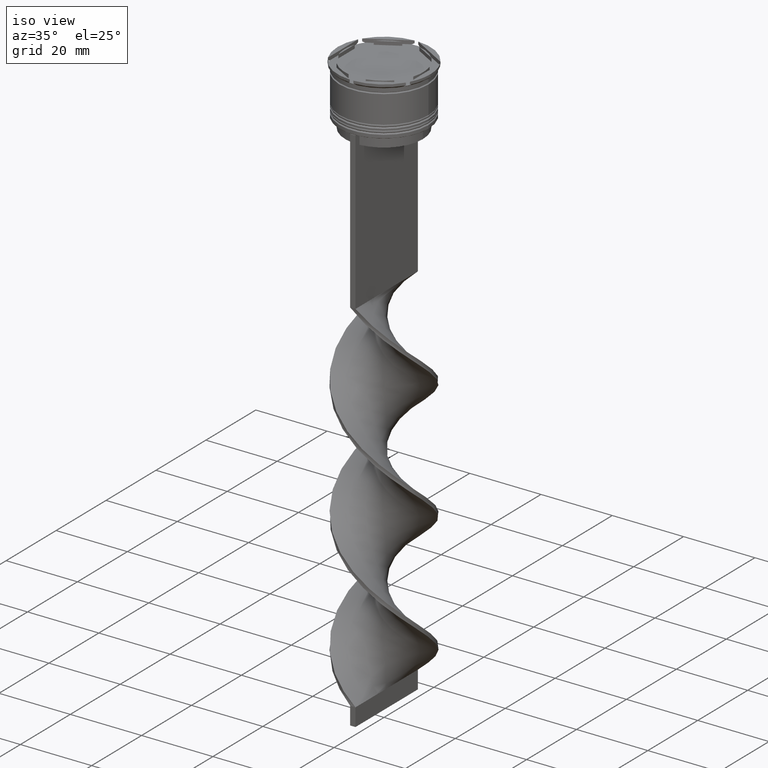
[diagram: clean part render]
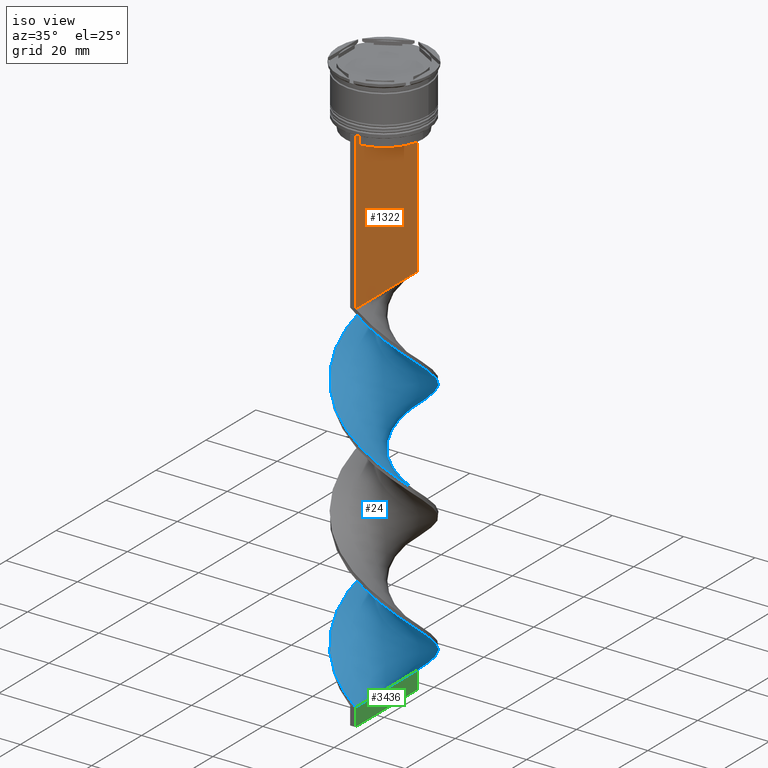
[diagram: same view with three faces highlighted in distinct colors, each labeled with its STEP entity id]
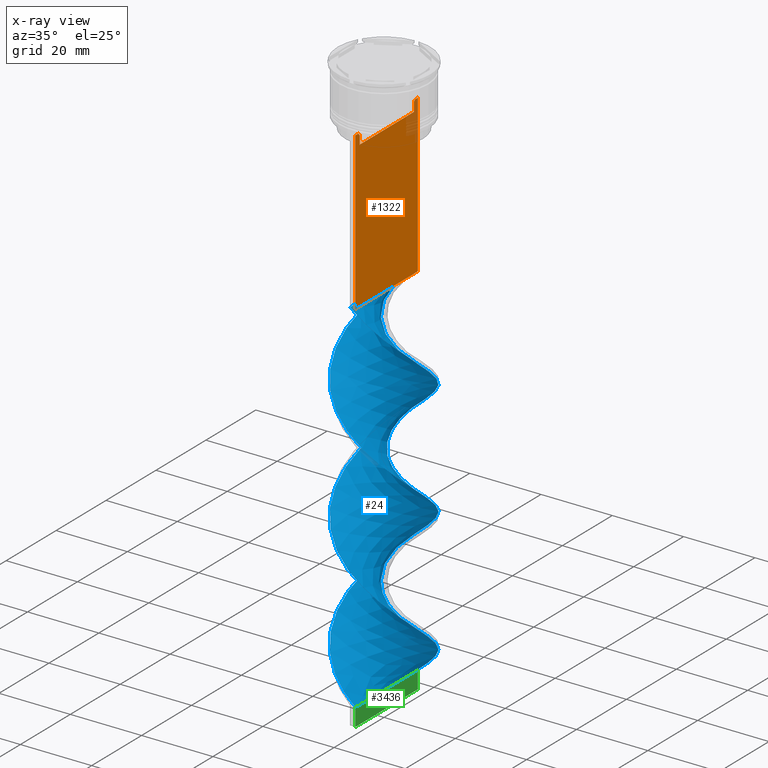
[diagram: x-ray of the same camera — body ghosted, the three highlighted faces saturated]
A machine part, iso view with three faces highlighted in distinct colors.
The next image is the same camera in x-ray (body ghosted, the three faces saturated) — at least one of them is partly hidden behind the body in this view.
Their STEP definitions:

[orange] entity #1322 — the highlighted planar face has unit normal (-1, 0, 0).
#15 = LINE ( 'NONE', #3839, #1508 ) ;
#125 = EDGE_CURVE ( 'NONE', #972, #663, #15, .T. ) ;
#207 = DIRECTION ( 'NONE',  ( -0.000000000000000000, -0.000000000000000000, 1.000000000000000000 ) ) ;
#231 = EDGE_CURVE ( 'NONE', #1227, #4077, #1096, .T. ) ;
#283 = CARTESIAN_POINT ( 'NONE',  ( 0.7500000000000002220, 12.50000000000000000, -14.00000000000000178 ) ) ;
#342 = CARTESIAN_POINT ( 'NONE',  ( 0.7500000000000002220, -11.37530219378809093, -14.00000000000000178 ) ) ;
#452 = CARTESIAN_POINT ( 'NONE',  ( 0.7500000000000002220, -12.50000000000000000, -14.00000000000000178 ) ) ;
#553 = CARTESIAN_POINT ( 'NONE',  ( 0.7500000000000002220, 10.87416663473574197, 0.000000000000000000 ) ) ;
#572 = CARTESIAN_POINT ( 'NONE',  ( 0.7500000000000002220, 12.37729776647553059, -14.00000000000000178 ) ) ;
#609 = CARTESIAN_POINT ( 'NONE',  ( 0.7500000000000002220, -12.50000000000000000, 11.04495957273638673 ) ) ;
#614 = VERTEX_POINT ( 'NONE', #1421 ) ;
#621 = ORIENTED_EDGE ( 'NONE', *, *, #3981, .T. ) ;
#625 = CARTESIAN_POINT ( 'NONE',  ( 0.7500000000000002220, 12.50000000000000000, 11.04495957273638673 ) ) ;
#663 = VERTEX_POINT ( 'NONE', #3974 ) ;
#665 = CARTESIAN_POINT ( 'NONE',  ( 0.7500000000000002220, 11.37530219378809093, -14.00000000000000178 ) ) ;
#701 = CARTESIAN_POINT ( 'NONE',  ( 0.7500000000000002220, -12.37729776647553059, -14.00000000000000178 ) ) ;
#708 = EDGE_CURVE ( 'NONE', #4077, #972, #3425, .T. ) ;
#729 = VERTEX_POINT ( 'NONE', #3746 ) ;
#826 = CARTESIAN_POINT ( 'NONE',  ( 0.7500000000000002220, -10.87416663473574197, -14.50000000000000000 ) ) ;
#854 = VERTEX_POINT ( 'NONE', #1059 ) ;
#898 = DIRECTION ( 'NONE',  ( 0.000000000000000000, -1.000000000000000000, 0.000000000000000000 ) ) ;
#899 = ORIENTED_EDGE ( 'NONE', *, *, #3409, .F. ) ;
#938 = CARTESIAN_POINT ( 'NONE',  ( 0.7500000000000002220, -10.87416663473574019, -17.00000000000000000 ) ) ;
#972 = VERTEX_POINT ( 'NONE', #701 ) ;
#1004 = DIRECTION ( 'NONE',  ( 0.000000000000000000, 1.000000000000000000, 0.000000000000000000 ) ) ;
#1028 = DIRECTION ( 'NONE',  ( 0.000000000000000000, -1.000000000000000000, 0.000000000000000000 ) ) ;
#1059 = CARTESIAN_POINT ( 'NONE',  ( 0.7500000000000002220, 10.87416663473574197, -14.50000000000000000 ) ) ;
#1096 = B_SPLINE_CURVE_WITH_KNOTS ( 'NONE', 3,
 ( #826, #2091, #1206, #1185 ),
 .UNSPECIFIED., .F., .F.,
 ( 4, 4 ),
 ( 0.05009718908159448147, 0.05081156920313959630 ),
 .UNSPECIFIED. ) ;
#1139 = EDGE_CURVE ( 'NONE', #1413, #3848, #4011, .T. ) ;
#1185 = CARTESIAN_POINT ( 'NONE',  ( 0.7500000000000002220, -11.37530219378809093, -14.00000000000000178 ) ) ;
#1206 = CARTESIAN_POINT ( 'NONE',  ( 0.7500000000000002220, -11.20826532207830439, -14.16667499063191826 ) ) ;
#1227 = VERTEX_POINT ( 'NONE', #2421 ) ;
#1240 = DIRECTION ( 'NONE',  ( 0.000000000000000000, 0.000000000000000000, 1.000000000000000000 ) ) ;
#1248 = EDGE_CURVE ( 'NONE', #2902, #1227, #2358, .T. ) ;
#1255 = VECTOR ( 'NONE', #1004, 1000.000000000000000 ) ;
#1322 = ADVANCED_FACE ( 'NONE', ( #3452 ), #2443, .F. ) ;
#1330 = VERTEX_POINT ( 'NONE', #2804 ) ;
#1331 = VECTOR ( 'NONE', #1028, 1000.000000000000000 ) ;
#1393 = ORIENTED_EDGE ( 'NONE', *, *, #1139, .T. ) ;
#1413 = VERTEX_POINT ( 'NONE', #283 ) ;
#1421 = CARTESIAN_POINT ( 'NONE',  ( 0.7500000000000002220, 12.50000000000000000, -58.00000000000000000 ) ) ;
#1458 = EDGE_CURVE ( 'NONE', #3135, #854, #1737, .T. ) ;
#1508 = VECTOR ( 'NONE', #2550, 1000.000000000000000 ) ;
#1602 = VECTOR ( 'NONE', #4080, 1000.000000000000000 ) ;
#1723 = VECTOR ( 'NONE', #2724, 1000.000000000000000 ) ;
#1737 = B_SPLINE_CURVE_WITH_KNOTS ( 'NONE', 3,
 ( #2458, #3706, #4111, #2819 ),
 .UNSPECIFIED., .F., .F.,
 ( 4, 4 ),
 ( 0.01936090553552769281, 0.02006881572333104116 ),
 .UNSPECIFIED. ) ;
#1749 = DIRECTION ( 'NONE',  ( 0.000000000000000000, -1.000000000000000000, 0.000000000000000000 ) ) ;
#1822 = DIRECTION ( 'NONE',  ( 0.000000000000000000, 0.000000000000000000, -1.000000000000000000 ) ) ;
#1833 = CARTESIAN_POINT ( 'NONE',  ( 0.7500000000000002220, -12.50000000000000000, 11.04495957273638673 ) ) ;
#1889 = ORIENTED_EDGE ( 'NONE', *, *, #2745, .T. ) ;
#1923 = VECTOR ( 'NONE', #207, 1000.000000000000000 ) ;
#2087 = ORIENTED_EDGE ( 'NONE', *, *, #231, .T. ) ;
#2091 = CARTESIAN_POINT ( 'NONE',  ( 0.7500000000000002220, -11.04122051801870441, -14.33334204001847567 ) ) ;
#2119 = LINE ( 'NONE', #609, #3601 ) ;
#2198 = ORIENTED_EDGE ( 'NONE', *, *, #2283, .T. ) ;
#2283 = EDGE_CURVE ( 'NONE', #854, #1330, #4094, .T. ) ;
#2323 = AXIS2_PLACEMENT_3D ( 'NONE', #1833, #3114, #1240 ) ;
#2350 = ORIENTED_EDGE ( 'NONE', *, *, #125, .T. ) ;
#2358 = LINE ( 'NONE', #3632, #1923 ) ;
#2421 = CARTESIAN_POINT ( 'NONE',  ( 0.7500000000000002220, -10.87416663473574197, -14.50000000000000000 ) ) ;
#2443 = PLANE ( 'NONE',  #2323 ) ;
#2451 = VECTOR ( 'NONE', #898, 1000.000000000000000 ) ;
#2458 = CARTESIAN_POINT ( 'NONE',  ( 0.7500000000000002220, 11.37530219378809093, -14.00000000000000178 ) ) ;
#2511 = EDGE_CURVE ( 'NONE', #729, #614, #3230, .T. ) ;
#2550 = DIRECTION ( 'NONE',  ( 0.000000000000000000, -1.000000000000000000, 0.000000000000000000 ) ) ;
#2660 = ORIENTED_EDGE ( 'NONE', *, *, #2511, .T. ) ;
#2724 = DIRECTION ( 'NONE',  ( 0.000000000000000000, -1.000000000000000000, 0.000000000000000000 ) ) ;
#2745 = EDGE_CURVE ( 'NONE', #3848, #3135, #3055, .T. ) ;
#2804 = CARTESIAN_POINT ( 'NONE',  ( 0.7500000000000002220, 10.87416663473574019, -17.00000000000000000 ) ) ;
#2819 = CARTESIAN_POINT ( 'NONE',  ( 0.7500000000000002220, 10.87416663473574197, -14.50000000000000000 ) ) ;
#2900 = VECTOR ( 'NONE', #3730, 1000.000000000000000 ) ;
#2902 = VERTEX_POINT ( 'NONE', #938 ) ;
#2942 = EDGE_LOOP ( 'NONE', ( #1889, #3005, #2198, #3909, #3811, #2087, #3963, #2350, #621, #2660, #899, #1393 ) ) ;
#2945 = LINE ( 'NONE', #3534, #1331 ) ;
#3005 = ORIENTED_EDGE ( 'NONE', *, *, #1458, .T. ) ;
#3055 = LINE ( 'NONE', #3636, #1723 ) ;
#3096 = LINE ( 'NONE', #625, #1602 ) ;
#3114 = DIRECTION ( 'NONE',  ( -1.000000000000000000, 0.000000000000000000, 0.000000000000000000 ) ) ;
#3128 = CARTESIAN_POINT ( 'NONE',  ( 0.7500000000000002220, -12.50000000000000000, -14.00000000000000178 ) ) ;
#3135 = VERTEX_POINT ( 'NONE', #665 ) ;
#3173 = CARTESIAN_POINT ( 'NONE',  ( 0.7500000000000002220, -12.50000000000000000, -58.00000000000000000 ) ) ;
#3230 = LINE ( 'NONE', #3173, #1255 ) ;
#3395 = VECTOR ( 'NONE', #1749, 1000.000000000000000 ) ;
#3409 = EDGE_CURVE ( 'NONE', #1413, #614, #3096, .T. ) ;
#3425 = LINE ( 'NONE', #3128, #2451 ) ;
#3452 = FACE_OUTER_BOUND ( 'NONE', #2942, .T. ) ;
#3534 = CARTESIAN_POINT ( 'NONE',  ( 0.7500000000000002220, 10.90000000000000213, -17.00000000000000000 ) ) ;
#3576 = EDGE_CURVE ( 'NONE', #1330, #2902, #2945, .T. ) ;
#3601 = VECTOR ( 'NONE', #1822, 1000.000000000000000 ) ;
#3632 = CARTESIAN_POINT ( 'NONE',  ( 0.7500000000000002220, -10.87416663473574197, 0.000000000000000000 ) ) ;
#3636 = CARTESIAN_POINT ( 'NONE',  ( 0.7500000000000002220, -12.50000000000000000, -14.00000000000000178 ) ) ;
#3706 = CARTESIAN_POINT ( 'NONE',  ( 0.7500000000000002220, 11.20826531587977648, -14.16667499681701514 ) ) ;
#3730 = DIRECTION ( 'NONE',  ( 0.000000000000000000, 0.000000000000000000, -1.000000000000000000 ) ) ;
#3746 = CARTESIAN_POINT ( 'NONE',  ( 0.7500000000000002220, -12.50000000000000000, -58.00000000000000000 ) ) ;
#3811 = ORIENTED_EDGE ( 'NONE', *, *, #1248, .T. ) ;
#3839 = CARTESIAN_POINT ( 'NONE',  ( 0.7500000000000002220, -12.50000000000000000, -14.00000000000000178 ) ) ;
#3848 = VERTEX_POINT ( 'NONE', #572 ) ;
#3909 = ORIENTED_EDGE ( 'NONE', *, *, #3576, .T. ) ;
#3963 = ORIENTED_EDGE ( 'NONE', *, *, #708, .T. ) ;
#3974 = CARTESIAN_POINT ( 'NONE',  ( 0.7500000000000002220, -12.50000000000000000, -14.00000000000000178 ) ) ;
#3981 = EDGE_CURVE ( 'NONE', #663, #729, #2119, .T. ) ;
#4011 = LINE ( 'NONE', #452, #3395 ) ;
#4077 = VERTEX_POINT ( 'NONE', #342 ) ;
#4080 = DIRECTION ( 'NONE',  ( 0.000000000000000000, 0.000000000000000000, -1.000000000000000000 ) ) ;
#4094 = LINE ( 'NONE', #553, #2900 ) ;
#4111 = CARTESIAN_POINT ( 'NONE',  ( 0.7500000000000002220, 11.04122051153452055, -14.33334204648729404 ) ) ;

[blue] entity #24 — the highlighted face is a freeform B-spline surface patch.
#5 = CARTESIAN_POINT ( 'NONE',  ( 10.61168328023406637, 6.777681757703949650, -81.56666666666664867 ) ) ;
#16 = CARTESIAN_POINT ( 'NONE',  ( 1.865285434671637432, -12.38277877728589260, -60.24444444444444713 ) ) ;
#21 = CARTESIAN_POINT ( 'NONE',  ( 3.332506835772350406, 12.07091124105925140, -156.7555555555555600 ) ) ;
#24 = ADVANCED_FACE ( 'NONE', ( #1570 ), #2893, .T. ) ;
#35 = CARTESIAN_POINT ( 'NONE',  ( 8.970633266239079973, 8.835866163051411704, -83.81111111111111711 ) ) ;
#41 = CARTESIAN_POINT ( 'NONE',  ( -12.45098658456436169, -1.875559948311554814, -110.7444444444444542 ) ) ;
#56 = CARTESIAN_POINT ( 'NONE',  ( 0.5638029408209559445, -12.57882817644925844, -126.4555555555555770 ) ) ;
#59 = CARTESIAN_POINT ( 'NONE',  ( 0.7499999999999983347, -12.50000000000000000, -159.0000000000000000 ) ) ;
#64 = CARTESIAN_POINT ( 'NONE',  ( 12.56885349454395495, -0.7541312096726379144, -142.1666666666666856 ) ) ;
#77 = CARTESIAN_POINT ( 'NONE',  ( 11.65644370790820794, -4.576004816908208817, -71.46666666666668277 ) ) ;
#83 = CARTESIAN_POINT ( 'NONE',  ( -6.937523532635176515, -10.50788081788355832, -119.7222222222222143 ) ) ;
#92 = CARTESIAN_POINT ( 'NONE',  ( 3.332506835772350406, 12.07091124105925140, -156.7555555555555600 ) ) ;
#100 = CARTESIAN_POINT ( 'NONE',  ( -12.35312734465267503, 2.052497212371882540, -107.3777777777777942 ) ) ;
#112 = CARTESIAN_POINT ( 'NONE',  ( 11.20031754730548457, 5.600480947161669221, -147.7777777777777715 ) ) ;
#122 = CARTESIAN_POINT ( 'NONE',  ( -12.50992003955415655, 0.5607143693194662770, -141.0444444444444514 ) ) ;
#144 = CARTESIAN_POINT ( 'NONE',  ( 11.20031754730548101, -5.600480947161677214, -102.8888888888888857 ) ) ;
#157 = CARTESIAN_POINT ( 'NONE',  ( 4.399048945215551676, -11.72437070283936222, -129.8222222222222229 ) ) ;
#162 = CARTESIAN_POINT ( 'NONE',  ( 0.7499999999999992228, -4.166666666666667851, -159.0000000000000000 ) ) ;
#165 = CARTESIAN_POINT ( 'NONE',  ( 4.601210730723735765, -11.72065065856776123, -95.03333333333331723 ) ) ;
#169 = CARTESIAN_POINT ( 'NONE',  ( -2.063802940820955723, 12.42117182355074334, -126.4555555555555770 ) ) ;
#191 = CARTESIAN_POINT ( 'NONE',  ( 9.791158273236570508, -7.806773960377686450, -100.6444444444444599 ) ) ;
#192 = CARTESIAN_POINT ( 'NONE',  ( 12.56885349454395495, 0.7541312096726348058, -108.5000000000000000 ) ) ;
#212 = CARTESIAN_POINT ( 'NONE',  ( 11.78895181437689743, -4.423280136619401226, -104.0111111111111200 ) ) ;
#216 = CARTESIAN_POINT ( 'NONE',  ( 11.65644370790820972, 4.576004816908206152, -111.8666666666666742 ) ) ;
#236 = CARTESIAN_POINT ( 'NONE',  ( 3.332506835772342857, -12.07091124105925317, -93.91111111111111143 ) ) ;
#255 = CARTESIAN_POINT ( 'NONE',  ( -0.7499999999999997780, 12.50000000000000000, -125.3333333333333570 ) ) ;
#277 = CARTESIAN_POINT ( 'NONE',  ( -8.787462363698281820, 8.921491198593777483, -100.6444444444444599 ) ) ;
#311 = CARTESIAN_POINT ( 'NONE',  ( -1.865285434671642761, -12.38277877728589083, -156.7555555555555600 ) ) ;
#318 = CARTESIAN_POINT ( 'NONE',  ( 12.50992003955415832, 0.5607143693194618361, -75.95555555555554861 ) ) ;
#331 = CARTESIAN_POINT ( 'NONE',  ( -4.399048945215555229, -11.72437070283936045, -154.5111111111111200 ) ) ;
#332 = CARTESIAN_POINT ( 'NONE',  ( -7.954078399437126912, -9.671873490467486789, -118.6000000000000085 ) ) ;
#341 = CARTESIAN_POINT ( 'NONE',  ( -12.11996919947063311, -3.149420042465475689, -111.8666666666666742 ) ) ;
#351 = CARTESIAN_POINT ( 'NONE',  ( 4.399048945215551676, -11.72437070283936222, -62.48888888888889426 ) ) ;
#357 = CARTESIAN_POINT ( 'NONE',  ( -2.063802940820966381, -12.42117182355074334, -124.2111111111111370 ) ) ;
#368 = CARTESIAN_POINT ( 'NONE',  ( -10.45031754730548457, -6.899519052838326338, -147.7777777777777715 ) ) ;
#369 = CARTESIAN_POINT ( 'NONE',  ( 7.954078399437126023, 9.671873490467488566, -84.93333333333333712 ) ) ;
#376 = CARTESIAN_POINT ( 'NONE',  ( 10.45031754730548279, -6.899519052838330779, -136.5555555555555713 ) ) ;
#390 = CARTESIAN_POINT ( 'NONE',  ( 3.166767928522319586, -12.18672937812252322, -61.36666666666666003 ) ) ;
#398 = CARTESIAN_POINT ( 'NONE',  ( -9.791158273236570508, 7.806773960377682897, -66.97777777777777430 ) ) ;
#401 = CARTESIAN_POINT ( 'NONE',  ( -5.631329961908789983, -11.26201202755619946, -86.05555555555557135 ) ) ;
#409 = CARTESIAN_POINT ( 'NONE',  ( -10.61168328023406637, -6.777681757703947873, -115.2333333333333343 ) ) ;
#416 = CARTESIAN_POINT ( 'NONE',  ( 11.20031754730548457, 5.600480947161669221, -147.7777777777777715 ) ) ;
#434 = CARTESIAN_POINT ( 'NONE',  ( -0.5638029408209594973, -12.57882817644926021, -90.54444444444445139 ) ) ;
#457 = CARTESIAN_POINT ( 'NONE',  ( 3.332506835772342857, -12.07091124105925317, -93.91111111111111143 ) ) ;
#476 = CARTESIAN_POINT ( 'NONE',  ( 12.56885349454395495, 0.7541312096726349168, -108.5000000000000000 ) ) ;
#480 = CARTESIAN_POINT ( 'NONE',  ( 12.13740119476140222, 3.350863215071099965, -110.7444444444444542 ) ) ;
#489 = CARTESIAN_POINT ( 'NONE',  ( 5.631329961908785542, -11.26201202755620479, -130.9444444444444571 ) ) ;
#498 = CARTESIAN_POINT ( 'NONE',  ( 12.11996919947063134, -3.149420042465480130, -105.1333333333333400 ) ) ;
#500 = CARTESIAN_POINT ( 'NONE',  ( -1.865285434671642761, -12.38277877728589083, -156.7555555555555600 ) ) ;
#520 = CARTESIAN_POINT ( 'NONE',  ( -9.791158273236570508, 7.806773960377682897, -134.3111111111111313 ) ) ;
#523 = CARTESIAN_POINT ( 'NONE',  ( -5.769367131679452143, 11.11426573822566155, -129.8222222222222229 ) ) ;
#546 = CARTESIAN_POINT ( 'NONE',  ( 0.7499999999999983347, -12.50000000000000000, -159.0000000000000000 ) ) ;
#547 = CARTESIAN_POINT ( 'NONE',  ( 3.332506835772350406, 12.07091124105925140, -89.42222222222223138 ) ) ;
#566 = CARTESIAN_POINT ( 'NONE',  ( 0.5638029408209667137, 12.57882817644925844, -124.2111111111111370 ) ) ;
#588 = CARTESIAN_POINT ( 'NONE',  ( 3.166767928522319586, -12.18672937812252499, -61.36666666666666003 ) ) ;
#608 = CARTESIAN_POINT ( 'NONE',  ( 8.970633266239079973, 8.835866163051411704, -83.81111111111111711 ) ) ;
#630 = CARTESIAN_POINT ( 'NONE',  ( 1.865285434671637432, -12.38277877728589260, -60.24444444444444713 ) ) ;
#643 = CARTESIAN_POINT ( 'NONE',  ( 12.13740119476140045, -3.350863215071111068, -72.58888888888890278 ) ) ;
#648 = CARTESIAN_POINT ( 'NONE',  ( 7.849775853840622375, -9.845090710256195976, -133.1888888888889255 ) ) ;
#658 = CARTESIAN_POINT ( 'NONE',  ( -11.65644370790820972, -4.576004816908207040, -145.5333333333333599 ) ) ;
#659 = CARTESIAN_POINT ( 'NONE',  ( 10.45031754730548279, -6.899519052838330779, -69.22222222222222854 ) ) ;
#668 = CARTESIAN_POINT ( 'NONE',  ( -10.45031754730548101, 6.899519052838334332, -102.8888888888888857 ) ) ;
#679 = CARTESIAN_POINT ( 'NONE',  ( -4.399048945215547235, 11.72437070283936222, -96.15555555555556566 ) ) ;
#687 = CARTESIAN_POINT ( 'NONE',  ( 2.063802940820959275, 12.42117182355074334, -157.8777777777777942 ) ) ;
#698 = CARTESIAN_POINT ( 'NONE',  ( -11.17548622105501721, 5.801146418745314115, -104.0111111111111057 ) ) ;
#705 = CARTESIAN_POINT ( 'NONE',  ( -6.937523532635171186, 10.50788081788356187, -63.61111111111111427 ) ) ;
#710 = CARTESIAN_POINT ( 'NONE',  ( -6.740552907874705291, -10.55355136890619683, -84.93333333333333712 ) ) ;
#718 = CARTESIAN_POINT ( 'NONE',  ( -0.5638029408209508375, 12.57882817644926199, -92.78888888888889142 ) ) ;
#724 = CARTESIAN_POINT ( 'NONE',  ( -7.954078399437126912, -9.671873490467486789, -118.6000000000000085 ) ) ;
#728 = CARTESIAN_POINT ( 'NONE',  ( -6.937523532635170298, 10.50788081788356187, -63.61111111111112137 ) ) ;
#742 = CARTESIAN_POINT ( 'NONE',  ( 0.7499999999999983347, -12.50000000000000000, -159.0000000000000000 ) ) ;
#745 = CARTESIAN_POINT ( 'NONE',  ( -10.45031754730548457, -6.899519052838326338, -80.44444444444445708 ) ) ;
#763 = CARTESIAN_POINT ( 'NONE',  ( -4.399048945215555229, -11.72437070283936045, -87.17777777777779136 ) ) ;
#784 = CARTESIAN_POINT ( 'NONE',  ( -11.17548622105502254, -5.801146418745303457, -79.32222222222222285 ) ) ;
#806 = CARTESIAN_POINT ( 'NONE',  ( 1.865285434671644538, 12.38277877728589083, -123.0888888888888886 ) ) ;
#810 = CARTESIAN_POINT ( 'NONE',  ( 11.78895181437689743, -4.423280136619400338, -104.0111111111111057 ) ) ;
#817 = LINE ( 'NONE', #3338, #1223 ) ;
#827 =( BOUNDED_CURVE ( )  B_SPLINE_CURVE ( 2, ( #1338, #1416, #2620, #3890, #2703, #728, #1038, #2345, #3285, #2028, #1711, #2993, #1395, #1671, #3638, #3970, #2680, #1079, #2365, #1101, #1021, #3266, #2306, #3580, #710, #401, #2954, #3123, #3742, #1820, #3059, #4040, #236, #1486, #2491, #3721, #4019, #2430, #2727, #3397, #1187, #810, #894, #3995, #2771, #192, #4085, #480, #216, #3102, #1167, #875, #1505, #2096, #3762, #3354, #1776, #3700, #1438, #566, #255, #169, #1465, #2116, #523, #830, #2789, #2449, #853, #1123, #1525, #2811, #1145, #2409, #4063, #2750, #2141, #1800, #3681, #3441, #3082, #1840, #2472, #2162, #1209, #3373, #1755, #3036, #500, #3422, #546 ),
 .UNSPECIFIED., .F., .T. ) 
 B_SPLINE_CURVE_WITH_KNOTS ( ( 3, 2, 2, 2, 2, 2, 2, 2, 2, 2, 2, 2, 2, 2, 2, 2, 2, 2, 2, 2, 2, 2, 2, 2, 2, 2, 2, 2, 2, 2, 2, 2, 2, 2, 2, 2, 2, 2, 2, 2, 2, 2, 2, 2, 2, 3 ),
 ( 0.000000000000000000, 0.01666666666666666644, 0.03333333333333333287, 0.05000000000000000971, 0.06666666666666666574, 0.08333333333333332871, 0.1000000000000000194, 0.1166666666666666546, 0.1333333333333333315, 0.1499999999999999944, 0.1666666666666666574, 0.1833333333333333204, 0.2000000000000000389, 0.2166666666666666741, 0.2333333333333333093, 0.2500000000000000000, 0.2666666666666666630, 0.2833333333333333259, 0.2999999999999999889, 0.3166666666666666519, 0.3333333333333333148, 0.3499999999999999223, 0.3666666666666666408, 0.3833333333333333592, 0.4000000000000000777, 0.4166666666666666852, 0.4333333333333333481, 0.4500000000000000111, 0.4666666666666666186, 0.4833333333333333370, 0.5000000000000000000, 0.5166666666666667185, 0.5333333333333333259, 0.5500000000000000444, 0.5666666666666666519, 0.5833333333333333703, 0.5999999999999999778, 0.6166666666666666963, 0.6333333333333333037, 0.6500000000000000222, 0.6666666666666666297, 0.6833333333333332371, 0.6999999999999998446, 0.7166666666666666741, 0.7333333333333332815, 0.7500000000000000000 ),
 .UNSPECIFIED. ) 
 CURVE ( )  GEOMETRIC_REPRESENTATION_ITEM ( )  RATIONAL_B_SPLINE_CURVE ( ( 1.000000000000000000, 0.9945218953682732899, 1.000000000000000000, 0.9945218953682732899, 1.000000000000000000, 0.9945218953682732899, 1.000000000000000000, 0.9945218953682732899, 1.000000000000000000, 0.9945218953682732899, 1.000000000000000000, 0.9945218953682732899, 1.000000000000000000, 0.9945218953682732899, 1.000000000000000000, 0.9945218953682732899, 1.000000000000000000, 0.9945218953682732899, 1.000000000000000000, 0.9945218953682732899, 1.000000000000000000, 0.9945218953682732899, 1.000000000000000000, 0.9945218953682732899, 1.000000000000000000, 0.9945218953682732899, 1.000000000000000000, 0.9945218953682732899, 1.000000000000000000, 0.9945218953682732899, 1.000000000000000000, 0.9945218953682732899, 1.000000000000000000, 0.9945218953682732899, 1.000000000000000000, 0.9945218953682732899, 1.000000000000000000, 0.9945218953682732899, 1.000000000000000000, 0.9945218953682732899, 1.000000000000000000, 0.9945218953682732899, 1.000000000000000000, 0.9945218953682732899, 1.000000000000000000, 0.9945218953682732899, 1.000000000000000000, 0.9945218953682732899, 1.000000000000000000, 0.9945218953682732899, 1.000000000000000000, 0.9945218953682732899, 1.000000000000000000, 0.9945218953682732899, 1.000000000000000000, 0.9945218953682732899, 1.000000000000000000, 0.9945218953682732899, 1.000000000000000000, 0.9945218953682732899, 1.000000000000000000, 0.9945218953682732899, 1.000000000000000000, 0.9945218953682732899, 1.000000000000000000, 0.9945218953682732899, 1.000000000000000000, 0.9945218953682732899, 1.000000000000000000, 0.9945218953682732899, 1.000000000000000000, 0.9945218953682732899, 1.000000000000000000, 0.9945218953682732899, 1.000000000000000000, 0.9945218953682732899, 1.000000000000000000, 0.9945218953682732899, 1.000000000000000000, 0.9945218953682732899, 1.000000000000000000, 0.9945218953682732899, 1.000000000000000000, 0.9945218953682732899, 1.000000000000000000, 0.9945218953682732899, 1.000000000000000000, 0.9945218953682732899, 1.000000000000000000, 0.9945218953682732899, 1.000000000000000000 ) ) 
 REPRESENTATION_ITEM ( '' )  );
#828 = CARTESIAN_POINT ( 'NONE',  ( 12.50992003955415832, -0.5607143693194732714, -107.3777777777777942 ) ) ;
#830 = CARTESIAN_POINT ( 'NONE',  ( -6.937523532635170298, 10.50788081788356187, -130.9444444444444571 ) ) ;
#853 = CARTESIAN_POINT ( 'NONE',  ( -9.791158273236570508, 7.806773960377682897, -134.3111111111111313 ) ) ;
#875 = CARTESIAN_POINT ( 'NONE',  ( 9.725148873555950146, 7.997891686931350108, -115.2333333333333343 ) ) ;
#876 = CARTESIAN_POINT ( 'NONE',  ( -0.5638029408209509485, 12.57882817644926376, -92.78888888888889142 ) ) ;
#894 = CARTESIAN_POINT ( 'NONE',  ( 12.11996919947063134, -3.149420042465480130, -105.1333333333333400 ) ) ;
#916 = EDGE_CURVE ( 'NONE', #3615, #1025, #827, .T. ) ;
#918 = CARTESIAN_POINT ( 'NONE',  ( -9.725148873555944817, 7.997891686931354549, -101.7666666666666515 ) ) ;
#931 = CARTESIAN_POINT ( 'NONE',  ( -6.740552907874705291, -10.55355136890619683, -152.2666666666666799 ) ) ;
#954 = CARTESIAN_POINT ( 'NONE',  ( 7.849775853840624151, -9.845090710256194200, -65.85555555555555429 ) ) ;
#959 = CARTESIAN_POINT ( 'NONE',  ( 3.166767928522319586, -12.18672937812252499, -128.6999999999999886 ) ) ;
#970 = CARTESIAN_POINT ( 'NONE',  ( -11.65644370790820794, 4.576004816908209705, -105.1333333333333400 ) ) ;
#976 = CARTESIAN_POINT ( 'NONE',  ( 12.11996919947063311, 3.149420042465477021, -145.5333333333333599 ) ) ;
#989 = CARTESIAN_POINT ( 'NONE',  ( 6.937523532635174739, 10.50788081788355832, -86.05555555555557135 ) ) ;
#999 = CARTESIAN_POINT ( 'NONE',  ( -11.78895181437690454, -4.423280136619386127, -112.9888888888888943 ) ) ;
#1009 = CARTESIAN_POINT ( 'NONE',  ( 0.5638029408209559445, -12.57882817644925844, -59.12222222222222712 ) ) ;
#1017 = CARTESIAN_POINT ( 'NONE',  ( 0.7500000000000013323, 12.50000000000000000, -159.0000000000000000 ) ) ;
#1021 = CARTESIAN_POINT ( 'NONE',  ( -10.45031754730548457, -6.899519052838326338, -80.44444444444445708 ) ) ;
#1025 = VERTEX_POINT ( 'NONE', #59 ) ;
#1027 = CARTESIAN_POINT ( 'NONE',  ( 5.769367131679455696, 11.11426573822565977, -87.17777777777779136 ) ) ;
#1034 = CARTESIAN_POINT ( 'NONE',  ( 12.13740119476140045, -3.350863215071111068, -139.9222222222222172 ) ) ;
#1038 = CARTESIAN_POINT ( 'NONE',  ( -7.954078399437124247, 9.671873490467490342, -64.73333333333333428 ) ) ;
#1055 = CARTESIAN_POINT ( 'NONE',  ( -11.20031754730548279, 5.600480947161673662, -136.5555555555555713 ) ) ;
#1067 = CARTESIAN_POINT ( 'NONE',  ( 0.7500000000000013323, 12.50000000000000000, -159.0000000000000000 ) ) ;
#1076 = CARTESIAN_POINT ( 'NONE',  ( -12.56885349454395495, -0.7541312096726363601, -142.1666666666666856 ) ) ;
#1079 = CARTESIAN_POINT ( 'NONE',  ( -12.13740119476140045, -3.350863215071107515, -77.07777777777778283 ) ) ;
#1088 = CARTESIAN_POINT ( 'NONE',  ( 9.725148873555948370, -7.997891686931351884, -135.4333333333333371 ) ) ;
#1097 = CARTESIAN_POINT ( 'NONE',  ( -12.56885349454395495, -0.7541312096726363601, -74.83333333333334281 ) ) ;
#1101 = CARTESIAN_POINT ( 'NONE',  ( -11.17548622105502076, -5.801146418745304345, -79.32222222222222285 ) ) ;
#1119 = CARTESIAN_POINT ( 'NONE',  ( 9.725148873555950146, 7.997891686931350996, -115.2333333333333343 ) ) ;
#1123 = CARTESIAN_POINT ( 'NONE',  ( -10.61168328023406637, 6.777681757703951426, -135.4333333333333371 ) ) ;
#1132 = CARTESIAN_POINT ( 'NONE',  ( 10.61168328023406460, 6.777681757703949650, -148.8999999999999773 ) ) ;
#1136 = CARTESIAN_POINT ( 'NONE',  ( 0.7500000000000013323, 12.50000000000000000, -159.0000000000000000 ) ) ;
#1142 = CARTESIAN_POINT ( 'NONE',  ( 11.17548622105502432, 5.801146418745299016, -112.9888888888888943 ) ) ;
#1145 = CARTESIAN_POINT ( 'NONE',  ( -12.11996919947063134, 3.149420042465478353, -138.8000000000000114 ) ) ;
#1165 = EDGE_CURVE ( 'NONE', #1452, #1025, #1608, .T. ) ;
#1167 = CARTESIAN_POINT ( 'NONE',  ( 10.45031754730548990, 6.899519052838320121, -114.1111111111111285 ) ) ;
#1187 = CARTESIAN_POINT ( 'NONE',  ( 11.20031754730548101, -5.600480947161677214, -102.8888888888888857 ) ) ;
#1188 = CARTESIAN_POINT ( 'NONE',  ( -1.865285434671634324, 12.38277877728589260, -93.91111111111111143 ) ) ;
#1209 = CARTESIAN_POINT ( 'NONE',  ( -6.740552907874705291, -10.55355136890619683, -152.2666666666666799 ) ) ;
#1210 = CARTESIAN_POINT ( 'NONE',  ( 11.65644370790820794, -4.576004816908208817, -71.46666666666668277 ) ) ;
#1223 = VECTOR ( 'NONE', #2057, 1000.000000000000000 ) ;
#1226 = ORIENTED_EDGE ( 'NONE', *, *, #2123, .F. ) ;
#1230 = CARTESIAN_POINT ( 'NONE',  ( 5.631329961908785542, -11.26201202755620123, -63.61111111111111427 ) ) ;
#1256 =( BOUNDED_CURVE ( )  B_SPLINE_CURVE ( 2, ( #3257, #1009, #16, #390, #351, #1660, #1286, #954, #2295, #1265, #659, #1940, #77, #643, #3570, #1345, #1327, #2629, #2923, #2944, #2276, #1640, #3277, #35, #369, #989, #1027, #2551, #3551, #3898, #2905, #718, #2570, #1956, #679, #3821, #3840, #1624, #1303, #2590, #2609, #698, #970, #3236, #2256, #1978, #2314, #1920, #3587, #3878, #1999, #409, #2238, #3533, #332, #2869, #4140, #3517, #3198, #1607, #2888, #56, #3219, #3858, #157, #489, #1696, #1678, #1426, #1088, #3292, #3668, #1448, #4004, #2979, #2372, #2667, #3361, #2082, #3978, #112, #1132, #1379, #3940, #3688, #2035, #1718, #3959, #92, #2335, #1067 ),
 .UNSPECIFIED., .F., .T. ) 
 B_SPLINE_CURVE_WITH_KNOTS ( ( 3, 2, 2, 2, 2, 2, 2, 2, 2, 2, 2, 2, 2, 2, 2, 2, 2, 2, 2, 2, 2, 2, 2, 2, 2, 2, 2, 2, 2, 2, 2, 2, 2, 2, 2, 2, 2, 2, 2, 2, 2, 2, 2, 2, 2, 3 ),
 ( 0.000000000000000000, 0.01666666666666666644, 0.03333333333333333287, 0.05000000000000000971, 0.06666666666666666574, 0.08333333333333332871, 0.1000000000000000194, 0.1166666666666666546, 0.1333333333333333315, 0.1499999999999999944, 0.1666666666666666574, 0.1833333333333333204, 0.2000000000000000389, 0.2166666666666666741, 0.2333333333333333093, 0.2500000000000000000, 0.2666666666666666630, 0.2833333333333333259, 0.2999999999999999889, 0.3166666666666666519, 0.3333333333333333148, 0.3499999999999999223, 0.3666666666666666408, 0.3833333333333333592, 0.4000000000000000777, 0.4166666666666666852, 0.4333333333333333481, 0.4500000000000000111, 0.4666666666666666186, 0.4833333333333333370, 0.5000000000000000000, 0.5166666666666667185, 0.5333333333333333259, 0.5500000000000000444, 0.5666666666666666519, 0.5833333333333333703, 0.5999999999999999778, 0.6166666666666666963, 0.6333333333333333037, 0.6500000000000000222, 0.6666666666666666297, 0.6833333333333332371, 0.6999999999999998446, 0.7166666666666666741, 0.7333333333333332815, 0.7500000000000000000 ),
 .UNSPECIFIED. ) 
 CURVE ( )  GEOMETRIC_REPRESENTATION_ITEM ( )  RATIONAL_B_SPLINE_CURVE ( ( 1.000000000000000000, 0.9945218953682732899, 1.000000000000000000, 0.9945218953682732899, 1.000000000000000000, 0.9945218953682732899, 1.000000000000000000, 0.9945218953682732899, 1.000000000000000000, 0.9945218953682732899, 1.000000000000000000, 0.9945218953682732899, 1.000000000000000000, 0.9945218953682732899, 1.000000000000000000, 0.9945218953682732899, 1.000000000000000000, 0.9945218953682732899, 1.000000000000000000, 0.9945218953682732899, 1.000000000000000000, 0.9945218953682732899, 1.000000000000000000, 0.9945218953682732899, 1.000000000000000000, 0.9945218953682732899, 1.000000000000000000, 0.9945218953682732899, 1.000000000000000000, 0.9945218953682732899, 1.000000000000000000, 0.9945218953682732899, 1.000000000000000000, 0.9945218953682732899, 1.000000000000000000, 0.9945218953682732899, 1.000000000000000000, 0.9945218953682732899, 1.000000000000000000, 0.9945218953682732899, 1.000000000000000000, 0.9945218953682732899, 1.000000000000000000, 0.9945218953682732899, 1.000000000000000000, 0.9945218953682732899, 1.000000000000000000, 0.9945218953682732899, 1.000000000000000000, 0.9945218953682732899, 1.000000000000000000, 0.9945218953682732899, 1.000000000000000000, 0.9945218953682732899, 1.000000000000000000, 0.9945218953682732899, 1.000000000000000000, 0.9945218953682732899, 1.000000000000000000, 0.9945218953682732899, 1.000000000000000000, 0.9945218953682732899, 1.000000000000000000, 0.9945218953682732899, 1.000000000000000000, 0.9945218953682732899, 1.000000000000000000, 0.9945218953682732899, 1.000000000000000000, 0.9945218953682732899, 1.000000000000000000, 0.9945218953682732899, 1.000000000000000000, 0.9945218953682732899, 1.000000000000000000, 0.9945218953682732899, 1.000000000000000000, 0.9945218953682732899, 1.000000000000000000, 0.9945218953682732899, 1.000000000000000000, 0.9945218953682732899, 1.000000000000000000, 0.9945218953682732899, 1.000000000000000000, 0.9945218953682732899, 1.000000000000000000, 0.9945218953682732899, 1.000000000000000000, 0.9945218953682732899, 1.000000000000000000 ) ) 
 REPRESENTATION_ITEM ( '' )  );
#1265 = CARTESIAN_POINT ( 'NONE',  ( 9.725148873555948370, -7.997891686931351884, -68.10000000000000853 ) ) ;
#1266 = ORIENTED_EDGE ( 'NONE', *, *, #2178, .T. ) ;
#1286 = CARTESIAN_POINT ( 'NONE',  ( 6.740552907874703514, -10.55355136890619860, -64.73333333333333428 ) ) ;
#1292 = CARTESIAN_POINT ( 'NONE',  ( -0.7499999999999997780, 12.50000000000000000, -58.00000000000000000 ) ) ;
#1303 = CARTESIAN_POINT ( 'NONE',  ( -8.787462363698281820, 8.921491198593777483, -100.6444444444444599 ) ) ;
#1311 = CARTESIAN_POINT ( 'NONE',  ( 9.725148873555946594, -7.997891686931353661, -135.4333333333333371 ) ) ;
#1327 = CARTESIAN_POINT ( 'NONE',  ( 12.50992003955415832, 0.5607143693194618361, -75.95555555555554861 ) ) ;
#1336 = CARTESIAN_POINT ( 'NONE',  ( -12.56885349454395495, 0.7541312096726394687, -108.5000000000000000 ) ) ;
#1338 = CARTESIAN_POINT ( 'NONE',  ( -0.7499999999999997780, 12.50000000000000000, -58.00000000000000000 ) ) ;
#1345 = CARTESIAN_POINT ( 'NONE',  ( 12.56885349454395495, -0.7541312096726379144, -74.83333333333332860 ) ) ;
#1352 = CARTESIAN_POINT ( 'NONE',  ( -10.61168328023406815, -6.777681757703947873, -115.2333333333333343 ) ) ;
#1368 = CARTESIAN_POINT ( 'NONE',  ( 1.865285434671637432, -12.38277877728589260, -127.5777777777777828 ) ) ;
#1379 = CARTESIAN_POINT ( 'NONE',  ( 9.791158273236575837, 7.806773960377678456, -150.0222222222222115 ) ) ;
#1389 = CARTESIAN_POINT ( 'NONE',  ( -5.769367131679452143, 11.11426573822566155, -129.8222222222222229 ) ) ;
#1395 = CARTESIAN_POINT ( 'NONE',  ( -12.11996919947063134, 3.149420042465478353, -71.46666666666668277 ) ) ;
#1412 = CARTESIAN_POINT ( 'NONE',  ( -12.35312734465267859, -2.052497212371871438, -75.95555555555554861 ) ) ;
#1416 = CARTESIAN_POINT ( 'NONE',  ( -2.063802940820955723, 12.42117182355074334, -59.12222222222222712 ) ) ;
#1426 = CARTESIAN_POINT ( 'NONE',  ( 8.787462363698281820, -8.921491198593773930, -134.3111111111111313 ) ) ;
#1434 = CARTESIAN_POINT ( 'NONE',  ( -3.166767928522321363, -12.18672937812252499, -88.29999999999998295 ) ) ;
#1438 = CARTESIAN_POINT ( 'NONE',  ( 1.865285434671644538, 12.38277877728589083, -123.0888888888888886 ) ) ;
#1448 = CARTESIAN_POINT ( 'NONE',  ( 11.65644370790820794, -4.576004816908208817, -138.8000000000000114 ) ) ;
#1452 = VERTEX_POINT ( 'NONE', #2497 ) ;
#1461 = CARTESIAN_POINT ( 'NONE',  ( -0.7499999999999997780, 12.50000000000000000, -125.3333333333333570 ) ) ;
#1465 = CARTESIAN_POINT ( 'NONE',  ( -3.332506835772345077, 12.07091124105925317, -127.5777777777777828 ) ) ;
#1481 = CARTESIAN_POINT ( 'NONE',  ( 5.631329961908790871, 11.26201202755619768, -119.7222222222222143 ) ) ;
#1486 = CARTESIAN_POINT ( 'NONE',  ( 4.601210730723734876, -11.72065065856775945, -95.03333333333331723 ) ) ;
#1501 = CARTESIAN_POINT ( 'NONE',  ( -9.725148873555948370, -7.997891686931350996, -148.8999999999999488 ) ) ;
#1505 = CARTESIAN_POINT ( 'NONE',  ( 8.787462363698288925, 8.921491198593768601, -116.3555555555555685 ) ) ;
#1525 = CARTESIAN_POINT ( 'NONE',  ( -11.20031754730548279, 5.600480947161673662, -136.5555555555555713 ) ) ;
#1526 = CARTESIAN_POINT ( 'NONE',  ( 4.399048945215551676, -11.72437070283936222, -62.48888888888889426 ) ) ;
#1570 = FACE_OUTER_BOUND ( 'NONE', #2934, .T. ) ;
#1595 = CARTESIAN_POINT ( 'NONE',  ( 12.11996919947063311, 3.149420042465477021, -78.20000000000000284 ) ) ;
#1607 = CARTESIAN_POINT ( 'NONE',  ( -2.063802940820966381, -12.42117182355074334, -124.2111111111111370 ) ) ;
#1608 = B_SPLINE_CURVE_WITH_KNOTS ( 'NONE', 3,
 ( #1136, #3612, #162, #742 ),
 .UNSPECIFIED., .F., .F.,
 ( 4, 4 ),
 ( 0.000000000000000000, 1.000000000000000000 ),
 .UNSPECIFIED. ) ;
#1615 = CARTESIAN_POINT ( 'NONE',  ( 11.78895181437690276, 4.423280136619390568, -146.6555555555555657 ) ) ;
#1624 = CARTESIAN_POINT ( 'NONE',  ( -7.849775853840619710, 9.845090710256194200, -99.52222222222223991 ) ) ;
#1628 = CARTESIAN_POINT ( 'NONE',  ( -12.50992003955415832, -0.5607143693194575063, -109.6222222222222342 ) ) ;
#1640 = CARTESIAN_POINT ( 'NONE',  ( 10.61168328023406460, 6.777681757703949650, -81.56666666666666288 ) ) ;
#1646 = CARTESIAN_POINT ( 'NONE',  ( -0.7499999999999997780, -12.50000000000000000, -58.00000000000000000 ) ) ;
#1647 = CARTESIAN_POINT ( 'NONE',  ( -11.17548622105501721, 5.801146418745314115, -104.0111111111111200 ) ) ;
#1660 = CARTESIAN_POINT ( 'NONE',  ( 5.631329961908785542, -11.26201202755620479, -63.61111111111112137 ) ) ;
#1669 = CARTESIAN_POINT ( 'NONE',  ( 11.65644370790820794, -4.576004816908208817, -138.8000000000000114 ) ) ;
#1671 = CARTESIAN_POINT ( 'NONE',  ( -12.45098658456435992, 1.875559948311566139, -72.58888888888890278 ) ) ;
#1678 = CARTESIAN_POINT ( 'NONE',  ( 7.849775853840624151, -9.845090710256194200, -133.1888888888889255 ) ) ;
#1686 = CARTESIAN_POINT ( 'NONE',  ( -12.11996919947063134, 3.149420042465478353, -71.46666666666668277 ) ) ;
#1696 = CARTESIAN_POINT ( 'NONE',  ( 6.740552907874703514, -10.55355136890619860, -132.0666666666666629 ) ) ;
#1705 = CARTESIAN_POINT ( 'NONE',  ( -12.11996919947063134, 3.149420042465478353, -138.8000000000000114 ) ) ;
#1711 = CARTESIAN_POINT ( 'NONE',  ( -11.20031754730548279, 5.600480947161673662, -69.22222222222222854 ) ) ;
#1718 = CARTESIAN_POINT ( 'NONE',  ( 5.769367131679455696, 11.11426573822565977, -154.5111111111111200 ) ) ;
#1728 = CARTESIAN_POINT ( 'NONE',  ( 5.769367131679449479, -11.11426573822566510, -96.15555555555556566 ) ) ;
#1752 = CARTESIAN_POINT ( 'NONE',  ( -11.65644370790820972, -4.576004816908207040, -78.20000000000000284 ) ) ;
#1755 = CARTESIAN_POINT ( 'NONE',  ( -4.399048945215555229, -11.72437070283936045, -154.5111111111111200 ) ) ;
#1774 = CARTESIAN_POINT ( 'NONE',  ( 11.65644370790820972, 4.576004816908206152, -111.8666666666666742 ) ) ;
#1776 = CARTESIAN_POINT ( 'NONE',  ( 4.399048945215562334, 11.72437070283935689, -120.8444444444444485 ) ) ;
#1796 = CARTESIAN_POINT ( 'NONE',  ( -3.332506835772345077, 12.07091124105925317, -127.5777777777777828 ) ) ;
#1800 = CARTESIAN_POINT ( 'NONE',  ( -12.13740119476140045, -3.350863215071107515, -144.4111111111111256 ) ) ;
#1820 = CARTESIAN_POINT ( 'NONE',  ( -0.5638029408209594973, -12.57882817644925844, -90.54444444444445139 ) ) ;
#1840 = CARTESIAN_POINT ( 'NONE',  ( -9.725148873555948370, -7.997891686931350108, -148.8999999999999773 ) ) ;
#1841 = CARTESIAN_POINT ( 'NONE',  ( -0.7499999999999997780, -12.50000000000000000, -58.00000000000000000 ) ) ;
#1864 = CARTESIAN_POINT ( 'NONE',  ( 11.78895181437690276, 4.423280136619390568, -79.32222222222222285 ) ) ;
#1886 = CARTESIAN_POINT ( 'NONE',  ( 5.769367131679455696, 11.11426573822565977, -87.17777777777779136 ) ) ;
#1906 = CARTESIAN_POINT ( 'NONE',  ( 10.45031754730548279, -6.899519052838330779, -69.22222222222222854 ) ) ;
#1920 = CARTESIAN_POINT ( 'NONE',  ( -12.45098658456436169, -1.875559948311554592, -110.7444444444444542 ) ) ;
#1927 = CARTESIAN_POINT ( 'NONE',  ( 5.631329961908785542, -11.26201202755620123, -130.9444444444444287 ) ) ;
#1938 = CARTESIAN_POINT ( 'NONE',  ( -7.849775853840625039, -9.845090710256194200, -151.1444444444444457 ) ) ;
#1940 = CARTESIAN_POINT ( 'NONE',  ( 11.17548622105502076, -5.801146418745307898, -70.34444444444444855 ) ) ;
#1941 = CARTESIAN_POINT ( 'NONE',  ( -0.7499999999999997780, 12.50000000000000000, -58.00000000000000000 ) ) ;
#1946 = CARTESIAN_POINT ( 'NONE',  ( 10.61168328023406637, 6.777681757703949650, -148.8999999999999488 ) ) ;
#1955 = CARTESIAN_POINT ( 'NONE',  ( 0.7499999999999983347, -12.50000000000000000, -159.0000000000000000 ) ) ;
#1956 = CARTESIAN_POINT ( 'NONE',  ( -3.166767928522318254, 12.18672937812252499, -95.03333333333331723 ) ) ;
#1965 = CARTESIAN_POINT ( 'NONE',  ( 4.399048945215551676, -11.72437070283936222, -129.8222222222222229 ) ) ;
#1978 = CARTESIAN_POINT ( 'NONE',  ( -12.56885349454395495, 0.7541312096726393577, -108.5000000000000000 ) ) ;
#1986 = CARTESIAN_POINT ( 'NONE',  ( -11.65644370790820794, 4.576004816908209705, -105.1333333333333400 ) ) ;
#1999 = CARTESIAN_POINT ( 'NONE',  ( -11.20031754730548634, -5.600480947161663003, -114.1111111111111285 ) ) ;
#2005 = CARTESIAN_POINT ( 'NONE',  ( -7.954078399437124247, 9.671873490467490342, -64.73333333333333428 ) ) ;
#2024 = CARTESIAN_POINT ( 'NONE',  ( 12.45098658456436169, -1.875559948311570135, -106.2555555555555742 ) ) ;
#2028 = CARTESIAN_POINT ( 'NONE',  ( -10.61168328023406637, 6.777681757703951426, -68.10000000000000853 ) ) ;
#2035 = CARTESIAN_POINT ( 'NONE',  ( 6.937523532635174739, 10.50788081788355832, -153.3888888888889142 ) ) ;
#2045 = CARTESIAN_POINT ( 'NONE',  ( -8.787462363698287149, -8.921491198593770378, -82.68888888888889710 ) ) ;
#2057 = DIRECTION ( 'NONE',  ( 0.000000000000000000, 1.000000000000000000, 0.000000000000000000 ) ) ;
#2070 = CARTESIAN_POINT ( 'NONE',  ( 10.45031754730548990, 6.899519052838320121, -114.1111111111111285 ) ) ;
#2082 = CARTESIAN_POINT ( 'NONE',  ( 12.11996919947063311, 3.149420042465477021, -145.5333333333333599 ) ) ;
#2092 = CARTESIAN_POINT ( 'NONE',  ( -5.631329961908789983, -11.26201202755619768, -86.05555555555557135 ) ) ;
#2096 = CARTESIAN_POINT ( 'NONE',  ( 7.849775853840630369, 9.845090710256187094, -117.4777777777777885 ) ) ;
#2113 = CARTESIAN_POINT ( 'NONE',  ( 4.399048945215562334, 11.72437070283935689, -120.8444444444444485 ) ) ;
#2116 = CARTESIAN_POINT ( 'NONE',  ( -4.601210730723736653, 11.72065065856775767, -128.7000000000000171 ) ) ;
#2123 = EDGE_CURVE ( 'NONE', #3092, #1452, #1256, .T. ) ;
#2141 = CARTESIAN_POINT ( 'NONE',  ( -12.35312734465267859, -2.052497212371871438, -143.2888888888889198 ) ) ;
#2162 = CARTESIAN_POINT ( 'NONE',  ( -7.849775853840625039, -9.845090710256192423, -151.1444444444444457 ) ) ;
#2163 = CARTESIAN_POINT ( 'NONE',  ( -6.740552907874702626, 10.55355136890619860, -98.40000000000001990 ) ) ;
#2178 = EDGE_CURVE ( 'NONE', #3092, #3615, #817, .T. ) ;
#2182 = CARTESIAN_POINT ( 'NONE',  ( 7.849775853840622375, -9.845090710256195976, -65.85555555555555429 ) ) ;
#2221 = CARTESIAN_POINT ( 'NONE',  ( -3.166767928522321363, -12.18672937812252499, -155.6333333333333258 ) ) ;
#2238 = CARTESIAN_POINT ( 'NONE',  ( -9.791158273236577614, -7.806773960377676680, -116.3555555555555685 ) ) ;
#2244 = CARTESIAN_POINT ( 'NONE',  ( -4.601210730723740205, -11.72065065856775945, -121.9666666666666544 ) ) ;
#2256 = CARTESIAN_POINT ( 'NONE',  ( -12.35312734465267503, 2.052497212371882540, -107.3777777777777942 ) ) ;
#2263 = CARTESIAN_POINT ( 'NONE',  ( 0.5638029408209559445, -12.57882817644926021, -126.4555555555555628 ) ) ;
#2276 = CARTESIAN_POINT ( 'NONE',  ( 11.20031754730548457, 5.600480947161669221, -80.44444444444445708 ) ) ;
#2284 = CARTESIAN_POINT ( 'NONE',  ( 7.954078399437126023, 9.671873490467488566, -152.2666666666666799 ) ) ;
#2295 = CARTESIAN_POINT ( 'NONE',  ( 8.787462363698281820, -8.921491198593773930, -66.97777777777777430 ) ) ;
#2304 = CARTESIAN_POINT ( 'NONE',  ( -4.601210730723737541, 11.72065065856775945, -61.36666666666666003 ) ) ;
#2306 = CARTESIAN_POINT ( 'NONE',  ( -8.787462363698287149, -8.921491198593770378, -82.68888888888889710 ) ) ;
#2314 = CARTESIAN_POINT ( 'NONE',  ( -12.50992003955415832, -0.5607143693194575063, -109.6222222222222342 ) ) ;
#2322 = CARTESIAN_POINT ( 'NONE',  ( -2.063802940820956167, 12.42117182355074334, -59.12222222222222712 ) ) ;
#2335 = CARTESIAN_POINT ( 'NONE',  ( 2.063802940820959275, 12.42117182355074334, -157.8777777777777942 ) ) ;
#2344 = CARTESIAN_POINT ( 'NONE',  ( -6.740552907874705291, -10.55355136890619683, -84.93333333333333712 ) ) ;
#2345 = CARTESIAN_POINT ( 'NONE',  ( -8.970633266239078196, 8.835866163051415256, -65.85555555555555429 ) ) ;
#2362 = CARTESIAN_POINT ( 'NONE',  ( -12.35312734465267859, -2.052497212371871438, -143.2888888888889198 ) ) ;
#2365 = CARTESIAN_POINT ( 'NONE',  ( -11.65644370790820972, -4.576004816908207040, -78.20000000000000284 ) ) ;
#2372 = CARTESIAN_POINT ( 'NONE',  ( 12.56885349454395495, -0.7541312096726379144, -142.1666666666666856 ) ) ;
#2382 = CARTESIAN_POINT ( 'NONE',  ( 2.063802940820950838, -12.42117182355074689, -92.78888888888889142 ) ) ;
#2406 = CARTESIAN_POINT ( 'NONE',  ( 6.740552907874707067, 10.55355136890619860, -118.6000000000000085 ) ) ;
#2409 = CARTESIAN_POINT ( 'NONE',  ( -12.45098658456435992, 1.875559948311566139, -139.9222222222222172 ) ) ;
#2426 = CARTESIAN_POINT ( 'NONE',  ( -7.954078399437124247, 9.671873490467490342, -132.0666666666666629 ) ) ;
#2430 = CARTESIAN_POINT ( 'NONE',  ( 8.970633266239074644, -8.835866163051417033, -99.52222222222223991 ) ) ;
#2449 = CARTESIAN_POINT ( 'NONE',  ( -8.970633266239078196, 8.835866163051415256, -133.1888888888889255 ) ) ;
#2472 = CARTESIAN_POINT ( 'NONE',  ( -8.787462363698287149, -8.921491198593770378, -150.0222222222222115 ) ) ;
#2473 = CARTESIAN_POINT ( 'NONE',  ( -3.166767928522318254, 12.18672937812252677, -95.03333333333331723 ) ) ;
#2491 = CARTESIAN_POINT ( 'NONE',  ( 5.769367131679449479, -11.11426573822566510, -96.15555555555556566 ) ) ;
#2492 = CARTESIAN_POINT ( 'NONE',  ( 7.954078399437126023, 9.671873490467488566, -84.93333333333333712 ) ) ;
#2497 = CARTESIAN_POINT ( 'NONE',  ( 0.7500000000000013323, 12.50000000000000000, -159.0000000000000000 ) ) ;
#2513 = CARTESIAN_POINT ( 'NONE',  ( -5.631329961908782877, 11.26201202755620123, -97.27777777777778567 ) ) ;
#2537 = ORIENTED_EDGE ( 'NONE', *, *, #916, .T. ) ;
#2551 = CARTESIAN_POINT ( 'NONE',  ( 4.601210730723738429, 11.72065065856775767, -88.29999999999998295 ) ) ;
#2558 = CARTESIAN_POINT ( 'NONE',  ( 12.13740119476140045, -3.350863215071111068, -72.58888888888890278 ) ) ;
#2570 = CARTESIAN_POINT ( 'NONE',  ( -1.865285434671634324, 12.38277877728589260, -93.91111111111111143 ) ) ;
#2577 = CARTESIAN_POINT ( 'NONE',  ( -5.769367131679452143, 11.11426573822566155, -62.48888888888889426 ) ) ;
#2588 = CARTESIAN_POINT ( 'NONE',  ( -8.787462363698287149, -8.921491198593770378, -150.0222222222222115 ) ) ;
#2590 = CARTESIAN_POINT ( 'NONE',  ( -9.725148873555946594, 7.997891686931353661, -101.7666666666666515 ) ) ;
#2596 = CARTESIAN_POINT ( 'NONE',  ( -0.7499999999999997780, -12.50000000000000000, -125.3333333333333570 ) ) ;
#2609 = CARTESIAN_POINT ( 'NONE',  ( -10.45031754730548101, 6.899519052838334332, -102.8888888888888857 ) ) ;
#2617 = CARTESIAN_POINT ( 'NONE',  ( -3.332506835772352183, -12.07091124105925140, -123.0888888888888886 ) ) ;
#2620 = CARTESIAN_POINT ( 'NONE',  ( -3.332506835772345077, 12.07091124105925317, -60.24444444444444713 ) ) ;
#2629 = CARTESIAN_POINT ( 'NONE',  ( 12.45098658456435992, 1.875559948311562142, -77.07777777777778283 ) ) ;
#2637 = CARTESIAN_POINT ( 'NONE',  ( 12.50992003955415832, 0.5607143693194618361, -143.2888888888889198 ) ) ;
#2655 = CARTESIAN_POINT ( 'NONE',  ( -9.791158273236577614, -7.806773960377676680, -116.3555555555555685 ) ) ;
#2667 = CARTESIAN_POINT ( 'NONE',  ( 12.50992003955415832, 0.5607143693194618361, -143.2888888888889198 ) ) ;
#2677 = CARTESIAN_POINT ( 'NONE',  ( -7.849775853840625039, -9.845090710256194200, -83.81111111111111711 ) ) ;
#2680 = CARTESIAN_POINT ( 'NONE',  ( -12.35312734465267859, -2.052497212371871438, -75.95555555555554861 ) ) ;
#2699 = CARTESIAN_POINT ( 'NONE',  ( -12.50992003955415655, 0.5607143693194662770, -73.71111111111112280 ) ) ;
#2703 = CARTESIAN_POINT ( 'NONE',  ( -5.769367131679452143, 11.11426573822566155, -62.48888888888889426 ) ) ;
#2722 = CARTESIAN_POINT ( 'NONE',  ( 7.849775853840630369, 9.845090710256188871, -117.4777777777777885 ) ) ;
#2727 = CARTESIAN_POINT ( 'NONE',  ( 9.791158273236570508, -7.806773960377686450, -100.6444444444444599 ) ) ;
#2747 = CARTESIAN_POINT ( 'NONE',  ( -4.601210730723737541, 11.72065065856775945, -128.6999999999999886 ) ) ;
#2750 = CARTESIAN_POINT ( 'NONE',  ( -12.56885349454395495, -0.7541312096726363601, -142.1666666666666856 ) ) ;
#2771 = CARTESIAN_POINT ( 'NONE',  ( 12.50992003955415832, -0.5607143693194732714, -107.3777777777777942 ) ) ;
#2789 = CARTESIAN_POINT ( 'NONE',  ( -7.954078399437124247, 9.671873490467490342, -132.0666666666666629 ) ) ;
#2790 = CARTESIAN_POINT ( 'NONE',  ( 0.5638029408209559445, -12.57882817644926021, -59.12222222222222712 ) ) ;
#2811 = CARTESIAN_POINT ( 'NONE',  ( -11.78895181437690276, 4.423280136619393232, -137.6777777777777487 ) ) ;
#2812 = CARTESIAN_POINT ( 'NONE',  ( 6.740552907874703514, -10.55355136890619860, -64.73333333333333428 ) ) ;
#2833 = CARTESIAN_POINT ( 'NONE',  ( 12.45098658456435992, 1.875559948311562142, -77.07777777777778283 ) ) ;
#2850 = ORIENTED_EDGE ( 'NONE', *, *, #1165, .F. ) ;
#2853 = CARTESIAN_POINT ( 'NONE',  ( 9.725148873555946594, -7.997891686931353661, -68.10000000000002274 ) ) ;
#2868 = CARTESIAN_POINT ( 'NONE',  ( -12.13740119476140045, -3.350863215071107515, -144.4111111111111541 ) ) ;
#2869 = CARTESIAN_POINT ( 'NONE',  ( -6.937523532635175627, -10.50788081788355832, -119.7222222222222143 ) ) ;
#2875 = CARTESIAN_POINT ( 'NONE',  ( 11.20031754730548457, 5.600480947161669221, -80.44444444444445708 ) ) ;
#2888 = CARTESIAN_POINT ( 'NONE',  ( -0.7499999999999997780, -12.50000000000000000, -125.3333333333333570 ) ) ;
#2893 =( BOUNDED_SURFACE ( )  B_SPLINE_SURFACE ( 1, 2, ( 
 ( #1841, #2790, #630, #588, #1526, #1230, #2812, #2182, #4086, #2853, #1906, #3484, #1210, #2558, #4127, #4064, #318, #2833, #1595, #1864, #2875, #5, #3462, #608, #2492, #4107, #1886, #3827, #547, #3103, #3144, #876, #1188, #2473, #3743, #2513, #2163, #3124, #277, #918, #668, #1647, #1986, #3242, #100, #1336, #1628, #41, #341, #999, #2952, #1352, #2655, #3844, #724, #83, #3225, #2244, #2617, #357, #2596, #2263, #1368, #959, #1965, #1927, #3521, #648, #2911, #1311, #376, #2930, #1669, #1034, #3206, #64, #2637, #3865, #976, #1615, #416, #1946, #3539, #2970, #2284, #3559, #3888, #2894, #21, #687, #1017 ),
 ( #1292, #2322, #3577, #2304, #2577, #705, #2005, #3265, #398, #3907, #3593, #3283, #1686, #3635, #2699, #1097, #1412, #3678, #1752, #784, #745, #3033, #2045, #2677, #2344, #2092, #763, #1434, #3324, #434, #4016, #2382, #457, #165, #1728, #3967, #3010, #3370, #191, #3992, #144, #212, #498, #2024, #828, #476, #3054, #3657, #1774, #1142, #2070, #1119, #3350, #2722, #2406, #1481, #2113, #3926, #806, #3947, #1461, #3302, #1796, #2747, #1389, #3697, #2426, #3393, #520, #3080, #1055, #3617, #1705, #2990, #122, #1076, #2362, #2868, #658, #3218, #368, #1501, #2588, #1938, #931, #4036, #331, #2221, #311, #4058, #1955 ) ),
 .UNSPECIFIED., .F., .F., .F. ) 
 B_SPLINE_SURFACE_WITH_KNOTS ( ( 2, 2 ),
 ( 3, 2, 2, 2, 2, 2, 2, 2, 2, 2, 2, 2, 2, 2, 2, 2, 2, 2, 2, 2, 2, 2, 2, 2, 2, 2, 2, 2, 2, 2, 2, 2, 2, 2, 2, 2, 2, 2, 2, 2, 2, 2, 2, 2, 2, 3 ),
 ( 0.000000000000000000, 1.000000000000000000 ),
 ( 0.000000000000000000, 0.01666666666666666644, 0.03333333333333333287, 0.05000000000000000278, 0.06666666666666666574, 0.08333333333333332871, 0.1000000000000000056, 0.1166666666666666685, 0.1333333333333333315, 0.1499999999999999944, 0.1666666666666666574, 0.1833333333333333204, 0.2000000000000000111, 0.2166666666666666741, 0.2333333333333333370, 0.2500000000000000000, 0.2666666666666666630, 0.2833333333333333259, 0.2999999999999999889, 0.3166666666666666519, 0.3333333333333333148, 0.3499999999999999778, 0.3666666666666666408, 0.3833333333333333592, 0.4000000000000000222, 0.4166666666666666852, 0.4333333333333333481, 0.4500000000000000111, 0.4666666666666666741, 0.4833333333333333370, 0.5000000000000000000, 0.5166666666666667185, 0.5333333333333333259, 0.5500000000000000444, 0.5666666666666666519, 0.5833333333333333703, 0.5999999999999999778, 0.6166666666666666963, 0.6333333333333333037, 0.6500000000000000222, 0.6666666666666666297, 0.6833333333333333481, 0.6999999999999999556, 0.7166666666666666741, 0.7333333333333332815, 0.7500000000000000000 ),
 .UNSPECIFIED. ) 
 GEOMETRIC_REPRESENTATION_ITEM ( )  RATIONAL_B_SPLINE_SURFACE ( (
 ( 1.000000000000000000, 0.9945218953682732899, 1.000000000000000000, 0.9945218953682732899, 1.000000000000000000, 0.9945218953682732899, 1.000000000000000000, 0.9945218953682732899, 1.000000000000000000, 0.9945218953682732899, 1.000000000000000000, 0.9945218953682732899, 1.000000000000000000, 0.9945218953682732899, 1.000000000000000000, 0.9945218953682732899, 1.000000000000000000, 0.9945218953682732899, 1.000000000000000000, 0.9945218953682732899, 1.000000000000000000, 0.9945218953682732899, 1.000000000000000000, 0.9945218953682732899, 1.000000000000000000, 0.9945218953682732899, 1.000000000000000000, 0.9945218953682732899, 1.000000000000000000, 0.9945218953682732899, 1.000000000000000000, 0.9945218953682732899, 1.000000000000000000, 0.9945218953682732899, 1.000000000000000000, 0.9945218953682732899, 1.000000000000000000, 0.9945218953682732899, 1.000000000000000000, 0.9945218953682732899, 1.000000000000000000, 0.9945218953682732899, 1.000000000000000000, 0.9945218953682732899, 1.000000000000000000, 0.9945218953682732899, 1.000000000000000000, 0.9945218953682732899, 1.000000000000000000, 0.9945218953682732899, 1.000000000000000000, 0.9945218953682732899, 1.000000000000000000, 0.9945218953682732899, 1.000000000000000000, 0.9945218953682732899, 1.000000000000000000, 0.9945218953682732899, 1.000000000000000000, 0.9945218953682732899, 1.000000000000000000, 0.9945218953682732899, 1.000000000000000000, 0.9945218953682732899, 1.000000000000000000, 0.9945218953682732899, 1.000000000000000000, 0.9945218953682732899, 1.000000000000000000, 0.9945218953682732899, 1.000000000000000000, 0.9945218953682732899, 1.000000000000000000, 0.9945218953682732899, 1.000000000000000000, 0.9945218953682732899, 1.000000000000000000, 0.9945218953682732899, 1.000000000000000000, 0.9945218953682732899, 1.000000000000000000, 0.9945218953682732899, 1.000000000000000000, 0.9945218953682732899, 1.000000000000000000, 0.9945218953682732899, 1.000000000000000000, 0.9945218953682732899, 1.000000000000000000, 0.9945218953682732899, 1.000000000000000000),
 ( 1.000000000000000000, 0.9945218953682732899, 1.000000000000000000, 0.9945218953682732899, 1.000000000000000000, 0.9945218953682732899, 1.000000000000000000, 0.9945218953682732899, 1.000000000000000000, 0.9945218953682732899, 1.000000000000000000, 0.9945218953682732899, 1.000000000000000000, 0.9945218953682732899, 1.000000000000000000, 0.9945218953682732899, 1.000000000000000000, 0.9945218953682732899, 1.000000000000000000, 0.9945218953682732899, 1.000000000000000000, 0.9945218953682732899, 1.000000000000000000, 0.9945218953682732899, 1.000000000000000000, 0.9945218953682732899, 1.000000000000000000, 0.9945218953682732899, 1.000000000000000000, 0.9945218953682732899, 1.000000000000000000, 0.9945218953682732899, 1.000000000000000000, 0.9945218953682732899, 1.000000000000000000, 0.9945218953682732899, 1.000000000000000000, 0.9945218953682732899, 1.000000000000000000, 0.9945218953682732899, 1.000000000000000000, 0.9945218953682732899, 1.000000000000000000, 0.9945218953682732899, 1.000000000000000000, 0.9945218953682732899, 1.000000000000000000, 0.9945218953682732899, 1.000000000000000000, 0.9945218953682732899, 1.000000000000000000, 0.9945218953682732899, 1.000000000000000000, 0.9945218953682732899, 1.000000000000000000, 0.9945218953682732899, 1.000000000000000000, 0.9945218953682732899, 1.000000000000000000, 0.9945218953682732899, 1.000000000000000000, 0.9945218953682732899, 1.000000000000000000, 0.9945218953682732899, 1.000000000000000000, 0.9945218953682732899, 1.000000000000000000, 0.9945218953682732899, 1.000000000000000000, 0.9945218953682732899, 1.000000000000000000, 0.9945218953682732899, 1.000000000000000000, 0.9945218953682732899, 1.000000000000000000, 0.9945218953682732899, 1.000000000000000000, 0.9945218953682732899, 1.000000000000000000, 0.9945218953682732899, 1.000000000000000000, 0.9945218953682732899, 1.000000000000000000, 0.9945218953682732899, 1.000000000000000000, 0.9945218953682732899, 1.000000000000000000, 0.9945218953682732899, 1.000000000000000000, 0.9945218953682732899, 1.000000000000000000) ) ) 
 REPRESENTATION_ITEM ( '' )  SURFACE ( )  );
#2894 = CARTESIAN_POINT ( 'NONE',  ( 4.601210730723739317, 11.72065065856775945, -155.6333333333333258 ) ) ;
#2905 = CARTESIAN_POINT ( 'NONE',  ( 0.7500000000000013323, 12.50000000000000000, -91.66666666666667140 ) ) ;
#2911 = CARTESIAN_POINT ( 'NONE',  ( 8.787462363698281820, -8.921491198593773930, -134.3111111111111313 ) ) ;
#2923 = CARTESIAN_POINT ( 'NONE',  ( 12.11996919947063311, 3.149420042465477021, -78.20000000000000284 ) ) ;
#2930 = CARTESIAN_POINT ( 'NONE',  ( 11.17548622105502254, -5.801146418745307010, -137.6777777777777487 ) ) ;
#2934 = EDGE_LOOP ( 'NONE', ( #1266, #2537, #2850, #1226 ) ) ;
#2944 = CARTESIAN_POINT ( 'NONE',  ( 11.78895181437690276, 4.423280136619390568, -79.32222222222222285 ) ) ;
#2952 = CARTESIAN_POINT ( 'NONE',  ( -11.20031754730548634, -5.600480947161663003, -114.1111111111111285 ) ) ;
#2954 = CARTESIAN_POINT ( 'NONE',  ( -4.399048945215555229, -11.72437070283936045, -87.17777777777779136 ) ) ;
#2970 = CARTESIAN_POINT ( 'NONE',  ( 8.970633266239079973, 8.835866163051411704, -151.1444444444444457 ) ) ;
#2979 = CARTESIAN_POINT ( 'NONE',  ( 12.35312734465267681, -2.052497212371875435, -141.0444444444444514 ) ) ;
#2990 = CARTESIAN_POINT ( 'NONE',  ( -12.45098658456435992, 1.875559948311566361, -139.9222222222222172 ) ) ;
#2993 = CARTESIAN_POINT ( 'NONE',  ( -11.78895181437690276, 4.423280136619393232, -70.34444444444444855 ) ) ;
#3010 = CARTESIAN_POINT ( 'NONE',  ( 7.954078399437124247, -9.671873490467490342, -98.40000000000001990 ) ) ;
#3033 = CARTESIAN_POINT ( 'NONE',  ( -9.725148873555948370, -7.997891686931350996, -81.56666666666664867 ) ) ;
#3036 = CARTESIAN_POINT ( 'NONE',  ( -3.166767928522320918, -12.18672937812252322, -155.6333333333333542 ) ) ;
#3054 = CARTESIAN_POINT ( 'NONE',  ( 12.35312734465267859, 2.052497212371866997, -109.6222222222222342 ) ) ;
#3059 = CARTESIAN_POINT ( 'NONE',  ( 0.7499999999999983347, -12.50000000000000000, -91.66666666666667140 ) ) ;
#3080 = CARTESIAN_POINT ( 'NONE',  ( -10.61168328023406815, 6.777681757703951426, -135.4333333333333371 ) ) ;
#3082 = CARTESIAN_POINT ( 'NONE',  ( -10.45031754730548457, -6.899519052838326338, -147.7777777777777715 ) ) ;
#3092 = VERTEX_POINT ( 'NONE', #1646 ) ;
#3102 = CARTESIAN_POINT ( 'NONE',  ( 11.17548622105502254, 5.801146418745299904, -112.9888888888888943 ) ) ;
#3103 = CARTESIAN_POINT ( 'NONE',  ( 2.063802940820959275, 12.42117182355074334, -90.54444444444445139 ) ) ;
#3123 = CARTESIAN_POINT ( 'NONE',  ( -3.166767928522320918, -12.18672937812252322, -88.29999999999998295 ) ) ;
#3124 = CARTESIAN_POINT ( 'NONE',  ( -7.849775853840618822, 9.845090710256195976, -99.52222222222223991 ) ) ;
#3144 = CARTESIAN_POINT ( 'NONE',  ( 0.7500000000000013323, 12.50000000000000000, -91.66666666666667140 ) ) ;
#3198 = CARTESIAN_POINT ( 'NONE',  ( -3.332506835772352183, -12.07091124105925140, -123.0888888888888886 ) ) ;
#3206 = CARTESIAN_POINT ( 'NONE',  ( 12.35312734465267681, -2.052497212371875435, -141.0444444444444514 ) ) ;
#3218 = CARTESIAN_POINT ( 'NONE',  ( -11.17548622105502254, -5.801146418745303457, -146.6555555555555657 ) ) ;
#3219 = CARTESIAN_POINT ( 'NONE',  ( 1.865285434671637432, -12.38277877728589260, -127.5777777777777828 ) ) ;
#3225 = CARTESIAN_POINT ( 'NONE',  ( -5.769367131679462801, -11.11426573822565622, -120.8444444444444485 ) ) ;
#3236 = CARTESIAN_POINT ( 'NONE',  ( -12.13740119476139867, 3.350863215071115508, -106.2555555555555742 ) ) ;
#3242 = CARTESIAN_POINT ( 'NONE',  ( -12.13740119476139867, 3.350863215071115508, -106.2555555555555742 ) ) ;
#3257 = CARTESIAN_POINT ( 'NONE',  ( -0.7499999999999997780, -12.50000000000000000, -58.00000000000000000 ) ) ;
#3265 = CARTESIAN_POINT ( 'NONE',  ( -8.970633266239078196, 8.835866163051415256, -65.85555555555555429 ) ) ;
#3266 = CARTESIAN_POINT ( 'NONE',  ( -9.725148873555948370, -7.997891686931350108, -81.56666666666666288 ) ) ;
#3277 = CARTESIAN_POINT ( 'NONE',  ( 9.791158273236575837, 7.806773960377678456, -82.68888888888889710 ) ) ;
#3283 = CARTESIAN_POINT ( 'NONE',  ( -11.78895181437690276, 4.423280136619394121, -70.34444444444443434 ) ) ;
#3285 = CARTESIAN_POINT ( 'NONE',  ( -9.791158273236570508, 7.806773960377682897, -66.97777777777777430 ) ) ;
#3292 = CARTESIAN_POINT ( 'NONE',  ( 10.45031754730548279, -6.899519052838330779, -136.5555555555555713 ) ) ;
#3302 = CARTESIAN_POINT ( 'NONE',  ( -2.063802940820956167, 12.42117182355074334, -126.4555555555555628 ) ) ;
#3324 = CARTESIAN_POINT ( 'NONE',  ( -1.865285434671642761, -12.38277877728589083, -89.42222222222223138 ) ) ;
#3338 = CARTESIAN_POINT ( 'NONE',  ( -0.7499999999999997780, -12.50000000000000000, -58.00000000000000000 ) ) ;
#3350 = CARTESIAN_POINT ( 'NONE',  ( 8.787462363698288925, 8.921491198593768601, -116.3555555555555685 ) ) ;
#3354 = CARTESIAN_POINT ( 'NONE',  ( 5.631329961908790871, 11.26201202755619946, -119.7222222222222143 ) ) ;
#3361 = CARTESIAN_POINT ( 'NONE',  ( 12.45098658456435992, 1.875559948311562142, -144.4111111111111256 ) ) ;
#3370 = CARTESIAN_POINT ( 'NONE',  ( 8.970633266239074644, -8.835866163051417033, -99.52222222222223991 ) ) ;
#3373 = CARTESIAN_POINT ( 'NONE',  ( -5.631329961908789983, -11.26201202755619946, -153.3888888888889142 ) ) ;
#3393 = CARTESIAN_POINT ( 'NONE',  ( -8.970633266239078196, 8.835866163051415256, -133.1888888888889255 ) ) ;
#3397 = CARTESIAN_POINT ( 'NONE',  ( 10.61168328023406460, -6.777681757703953203, -101.7666666666666515 ) ) ;
#3422 = CARTESIAN_POINT ( 'NONE',  ( -0.5638029408209594973, -12.57882817644925844, -157.8777777777777942 ) ) ;
#3441 = CARTESIAN_POINT ( 'NONE',  ( -11.17548622105502076, -5.801146418745304345, -146.6555555555555657 ) ) ;
#3462 = CARTESIAN_POINT ( 'NONE',  ( 9.791158273236575837, 7.806773960377678456, -82.68888888888889710 ) ) ;
#3484 = CARTESIAN_POINT ( 'NONE',  ( 11.17548622105502254, -5.801146418745307010, -70.34444444444443434 ) ) ;
#3517 = CARTESIAN_POINT ( 'NONE',  ( -4.601210730723740205, -11.72065065856775767, -121.9666666666666544 ) ) ;
#3521 = CARTESIAN_POINT ( 'NONE',  ( 6.740552907874703514, -10.55355136890619860, -132.0666666666666629 ) ) ;
#3533 = CARTESIAN_POINT ( 'NONE',  ( -8.970633266239085302, -8.835866163051406375, -117.4777777777777885 ) ) ;
#3539 = CARTESIAN_POINT ( 'NONE',  ( 9.791158273236575837, 7.806773960377678456, -150.0222222222222115 ) ) ;
#3551 = CARTESIAN_POINT ( 'NONE',  ( 3.332506835772350406, 12.07091124105925140, -89.42222222222223138 ) ) ;
#3559 = CARTESIAN_POINT ( 'NONE',  ( 6.937523532635175627, 10.50788081788355832, -153.3888888888889142 ) ) ;
#3570 = CARTESIAN_POINT ( 'NONE',  ( 12.35312734465267681, -2.052497212371875435, -73.71111111111112280 ) ) ;
#3577 = CARTESIAN_POINT ( 'NONE',  ( -3.332506835772345077, 12.07091124105925317, -60.24444444444444713 ) ) ;
#3580 = CARTESIAN_POINT ( 'NONE',  ( -7.849775853840625039, -9.845090710256192423, -83.81111111111111711 ) ) ;
#3587 = CARTESIAN_POINT ( 'NONE',  ( -12.11996919947063311, -3.149420042465475689, -111.8666666666666742 ) ) ;
#3593 = CARTESIAN_POINT ( 'NONE',  ( -11.20031754730548279, 5.600480947161673662, -69.22222222222222854 ) ) ;
#3612 = CARTESIAN_POINT ( 'NONE',  ( 0.7500000000000003331, 4.166666666666667851, -159.0000000000000000 ) ) ;
#3615 = VERTEX_POINT ( 'NONE', #1941 ) ;
#3617 = CARTESIAN_POINT ( 'NONE',  ( -11.78895181437690276, 4.423280136619394121, -137.6777777777777487 ) ) ;
#3635 = CARTESIAN_POINT ( 'NONE',  ( -12.45098658456435992, 1.875559948311566361, -72.58888888888890278 ) ) ;
#3638 = CARTESIAN_POINT ( 'NONE',  ( -12.50992003955415655, 0.5607143693194662770, -73.71111111111112280 ) ) ;
#3657 = CARTESIAN_POINT ( 'NONE',  ( 12.13740119476140222, 3.350863215071099965, -110.7444444444444542 ) ) ;
#3668 = CARTESIAN_POINT ( 'NONE',  ( 11.17548622105502076, -5.801146418745307898, -137.6777777777777487 ) ) ;
#3678 = CARTESIAN_POINT ( 'NONE',  ( -12.13740119476140045, -3.350863215071107515, -77.07777777777778283 ) ) ;
#3681 = CARTESIAN_POINT ( 'NONE',  ( -11.65644370790820972, -4.576004816908207040, -145.5333333333333599 ) ) ;
#3688 = CARTESIAN_POINT ( 'NONE',  ( 7.954078399437126023, 9.671873490467488566, -152.2666666666666799 ) ) ;
#3697 = CARTESIAN_POINT ( 'NONE',  ( -6.937523532635171186, 10.50788081788356187, -130.9444444444444287 ) ) ;
#3700 = CARTESIAN_POINT ( 'NONE',  ( 3.166767928522322695, 12.18672937812252322, -121.9666666666666544 ) ) ;
#3721 = CARTESIAN_POINT ( 'NONE',  ( 6.937523532635167633, -10.50788081788356543, -97.27777777777779988 ) ) ;
#3742 = CARTESIAN_POINT ( 'NONE',  ( -1.865285434671642761, -12.38277877728589083, -89.42222222222223138 ) ) ;
#3743 = CARTESIAN_POINT ( 'NONE',  ( -4.399048945215547235, 11.72437070283936222, -96.15555555555556566 ) ) ;
#3762 = CARTESIAN_POINT ( 'NONE',  ( 6.740552907874707067, 10.55355136890619860, -118.6000000000000085 ) ) ;
#3821 = CARTESIAN_POINT ( 'NONE',  ( -5.631329961908782877, 11.26201202755620479, -97.27777777777779988 ) ) ;
#3827 = CARTESIAN_POINT ( 'NONE',  ( 4.601210730723739317, 11.72065065856775945, -88.29999999999998295 ) ) ;
#3840 = CARTESIAN_POINT ( 'NONE',  ( -6.740552907874702626, 10.55355136890619860, -98.40000000000001990 ) ) ;
#3844 = CARTESIAN_POINT ( 'NONE',  ( -8.970633266239085302, -8.835866163051408151, -117.4777777777777885 ) ) ;
#3858 = CARTESIAN_POINT ( 'NONE',  ( 3.166767928522319586, -12.18672937812252322, -128.7000000000000171 ) ) ;
#3865 = CARTESIAN_POINT ( 'NONE',  ( 12.45098658456435992, 1.875559948311562142, -144.4111111111111541 ) ) ;
#3878 = CARTESIAN_POINT ( 'NONE',  ( -11.78895181437690454, -4.423280136619386127, -112.9888888888888943 ) ) ;
#3888 = CARTESIAN_POINT ( 'NONE',  ( 5.769367131679455696, 11.11426573822565977, -154.5111111111111200 ) ) ;
#3890 = CARTESIAN_POINT ( 'NONE',  ( -4.601210730723736653, 11.72065065856775767, -61.36666666666666003 ) ) ;
#3898 = CARTESIAN_POINT ( 'NONE',  ( 2.063802940820959275, 12.42117182355074334, -90.54444444444445139 ) ) ;
#3907 = CARTESIAN_POINT ( 'NONE',  ( -10.61168328023406815, 6.777681757703951426, -68.10000000000002274 ) ) ;
#3926 = CARTESIAN_POINT ( 'NONE',  ( 3.166767928522322695, 12.18672937812252499, -121.9666666666666544 ) ) ;
#3940 = CARTESIAN_POINT ( 'NONE',  ( 8.970633266239079973, 8.835866163051411704, -151.1444444444444457 ) ) ;
#3947 = CARTESIAN_POINT ( 'NONE',  ( 0.5638029408209667137, 12.57882817644926021, -124.2111111111111370 ) ) ;
#3959 = CARTESIAN_POINT ( 'NONE',  ( 4.601210730723738429, 11.72065065856775767, -155.6333333333333542 ) ) ;
#3967 = CARTESIAN_POINT ( 'NONE',  ( 6.937523532635168522, -10.50788081788356543, -97.27777777777778567 ) ) ;
#3970 = CARTESIAN_POINT ( 'NONE',  ( -12.56885349454395495, -0.7541312096726363601, -74.83333333333332860 ) ) ;
#3978 = CARTESIAN_POINT ( 'NONE',  ( 11.78895181437690276, 4.423280136619390568, -146.6555555555555657 ) ) ;
#3992 = CARTESIAN_POINT ( 'NONE',  ( 10.61168328023406637, -6.777681757703953203, -101.7666666666666515 ) ) ;
#3995 = CARTESIAN_POINT ( 'NONE',  ( 12.45098658456436169, -1.875559948311570357, -106.2555555555555742 ) ) ;
#4004 = CARTESIAN_POINT ( 'NONE',  ( 12.13740119476140045, -3.350863215071111068, -139.9222222222222172 ) ) ;
#4016 = CARTESIAN_POINT ( 'NONE',  ( 0.7499999999999983347, -12.50000000000000000, -91.66666666666667140 ) ) ;
#4019 = CARTESIAN_POINT ( 'NONE',  ( 7.954078399437124247, -9.671873490467490342, -98.40000000000001990 ) ) ;
#4036 = CARTESIAN_POINT ( 'NONE',  ( -5.631329961908789983, -11.26201202755619768, -153.3888888888889142 ) ) ;
#4040 = CARTESIAN_POINT ( 'NONE',  ( 2.063802940820950838, -12.42117182355074689, -92.78888888888889142 ) ) ;
#4058 = CARTESIAN_POINT ( 'NONE',  ( -0.5638029408209594973, -12.57882817644926021, -157.8777777777777942 ) ) ;
#4063 = CARTESIAN_POINT ( 'NONE',  ( -12.50992003955415655, 0.5607143693194662770, -141.0444444444444514 ) ) ;
#4064 = CARTESIAN_POINT ( 'NONE',  ( 12.56885349454395495, -0.7541312096726379144, -74.83333333333334281 ) ) ;
#4085 = CARTESIAN_POINT ( 'NONE',  ( 12.35312734465267859, 2.052497212371866997, -109.6222222222222342 ) ) ;
#4086 = CARTESIAN_POINT ( 'NONE',  ( 8.787462363698281820, -8.921491198593773930, -66.97777777777777430 ) ) ;
#4107 = CARTESIAN_POINT ( 'NONE',  ( 6.937523532635175627, 10.50788081788355832, -86.05555555555557135 ) ) ;
#4127 = CARTESIAN_POINT ( 'NONE',  ( 12.35312734465267681, -2.052497212371875435, -73.71111111111112280 ) ) ;
#4140 = CARTESIAN_POINT ( 'NONE',  ( -5.769367131679462801, -11.11426573822565622, -120.8444444444444485 ) ) ;

[green] entity #3436 — the highlighted planar face has unit normal (-1, 0, 0).
#59 = CARTESIAN_POINT ( 'NONE',  ( 0.7499999999999983347, -12.50000000000000000, -159.0000000000000000 ) ) ;
#60 = DIRECTION ( 'NONE',  ( -1.214306433183764966E-16, -1.000000000000000000, 0.000000000000000000 ) ) ;
#162 = CARTESIAN_POINT ( 'NONE',  ( 0.7499999999999992228, -4.166666666666667851, -159.0000000000000000 ) ) ;
#316 = ORIENTED_EDGE ( 'NONE', *, *, #4088, .T. ) ;
#374 = CARTESIAN_POINT ( 'NONE',  ( 0.7500000000000013323, 12.50000000000000000, -164.0000000000000000 ) ) ;
#487 = LINE ( 'NONE', #374, #3078 ) ;
#561 = DIRECTION ( 'NONE',  ( -1.000000000000000000, 1.214306433183764966E-16, 0.000000000000000000 ) ) ;
#604 = CARTESIAN_POINT ( 'NONE',  ( 0.7500000000000013323, 12.50000000000000000, -164.0000000000000000 ) ) ;
#733 = ORIENTED_EDGE ( 'NONE', *, *, #3804, .F. ) ;
#742 = CARTESIAN_POINT ( 'NONE',  ( 0.7499999999999983347, -12.50000000000000000, -159.0000000000000000 ) ) ;
#1025 = VERTEX_POINT ( 'NONE', #59 ) ;
#1136 = CARTESIAN_POINT ( 'NONE',  ( 0.7500000000000013323, 12.50000000000000000, -159.0000000000000000 ) ) ;
#1165 = EDGE_CURVE ( 'NONE', #1452, #1025, #1608, .T. ) ;
#1224 = FACE_OUTER_BOUND ( 'NONE', #4116, .T. ) ;
#1333 = CARTESIAN_POINT ( 'NONE',  ( 0.7500000000000013323, 12.50000000000000000, -164.0000000000000000 ) ) ;
#1452 = VERTEX_POINT ( 'NONE', #2497 ) ;
#1545 = DIRECTION ( 'NONE',  ( -1.214306433183764966E-16, -1.000000000000000000, 0.000000000000000000 ) ) ;
#1608 = B_SPLINE_CURVE_WITH_KNOTS ( 'NONE', 3,
 ( #1136, #3612, #162, #742 ),
 .UNSPECIFIED., .F., .F.,
 ( 4, 4 ),
 ( 0.000000000000000000, 1.000000000000000000 ),
 .UNSPECIFIED. ) ;
#1724 = CARTESIAN_POINT ( 'NONE',  ( 0.7499999999999983347, -12.50000000000000000, -164.0000000000000000 ) ) ;
#1771 = LINE ( 'NONE', #1724, #3961 ) ;
#1860 = EDGE_CURVE ( 'NONE', #1862, #1025, #1771, .T. ) ;
#1862 = VERTEX_POINT ( 'NONE', #3653 ) ;
#1887 = CARTESIAN_POINT ( 'NONE',  ( 0.7500000000000013323, 12.50000000000000000, -164.0000000000000000 ) ) ;
#1934 = AXIS2_PLACEMENT_3D ( 'NONE', #604, #561, #1545 ) ;
#1947 = DIRECTION ( 'NONE',  ( -0.000000000000000000, -0.000000000000000000, 1.000000000000000000 ) ) ;
#2440 = ORIENTED_EDGE ( 'NONE', *, *, #1860, .F. ) ;
#2497 = CARTESIAN_POINT ( 'NONE',  ( 0.7500000000000013323, 12.50000000000000000, -159.0000000000000000 ) ) ;
#2666 = ORIENTED_EDGE ( 'NONE', *, *, #1165, .T. ) ;
#2985 = DIRECTION ( 'NONE',  ( -0.000000000000000000, -0.000000000000000000, 1.000000000000000000 ) ) ;
#3078 = VECTOR ( 'NONE', #60, 1000.000000000000000 ) ;
#3436 = ADVANCED_FACE ( 'NONE', ( #1224 ), #3454, .F. ) ;
#3454 = PLANE ( 'NONE',  #1934 ) ;
#3612 = CARTESIAN_POINT ( 'NONE',  ( 0.7500000000000003331, 4.166666666666667851, -159.0000000000000000 ) ) ;
#3653 = CARTESIAN_POINT ( 'NONE',  ( 0.7499999999999983347, -12.50000000000000000, -164.0000000000000000 ) ) ;
#3804 = EDGE_CURVE ( 'NONE', #3807, #1862, #487, .T. ) ;
#3807 = VERTEX_POINT ( 'NONE', #1333 ) ;
#3866 = LINE ( 'NONE', #1887, #4084 ) ;
#3961 = VECTOR ( 'NONE', #2985, 1000.000000000000000 ) ;
#4084 = VECTOR ( 'NONE', #1947, 1000.000000000000000 ) ;
#4088 = EDGE_CURVE ( 'NONE', #3807, #1452, #3866, .T. ) ;
#4116 = EDGE_LOOP ( 'NONE', ( #2666, #2440, #733, #316 ) ) ;